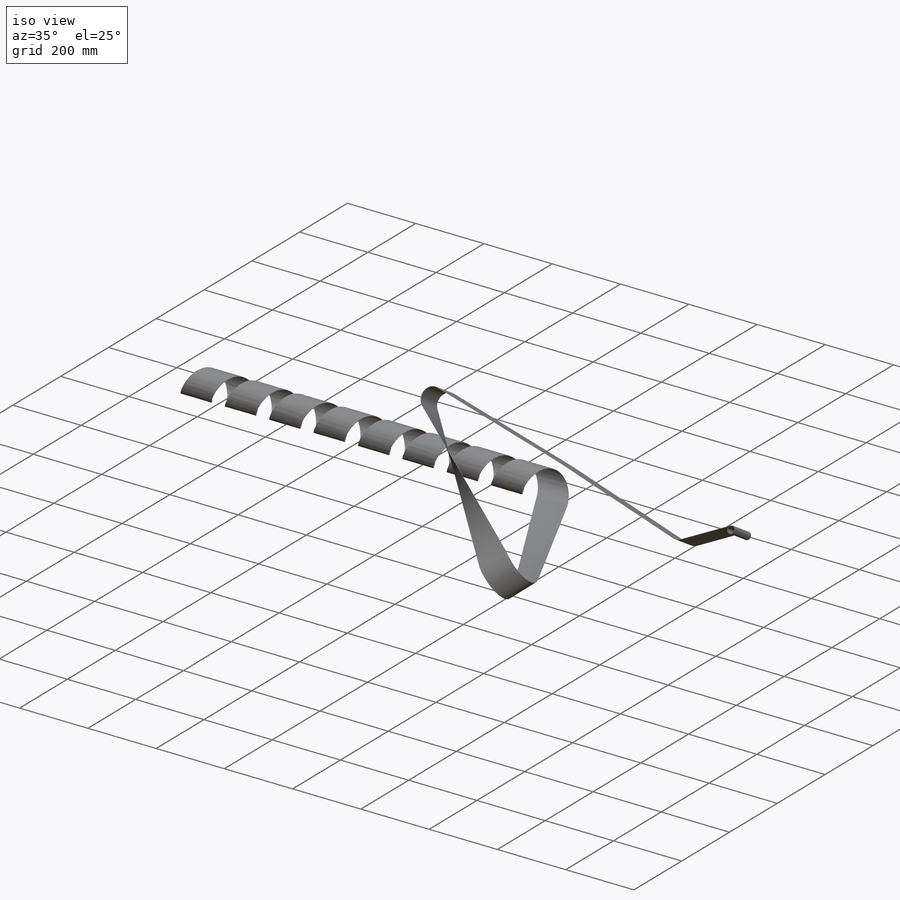
[diagram: iso view]
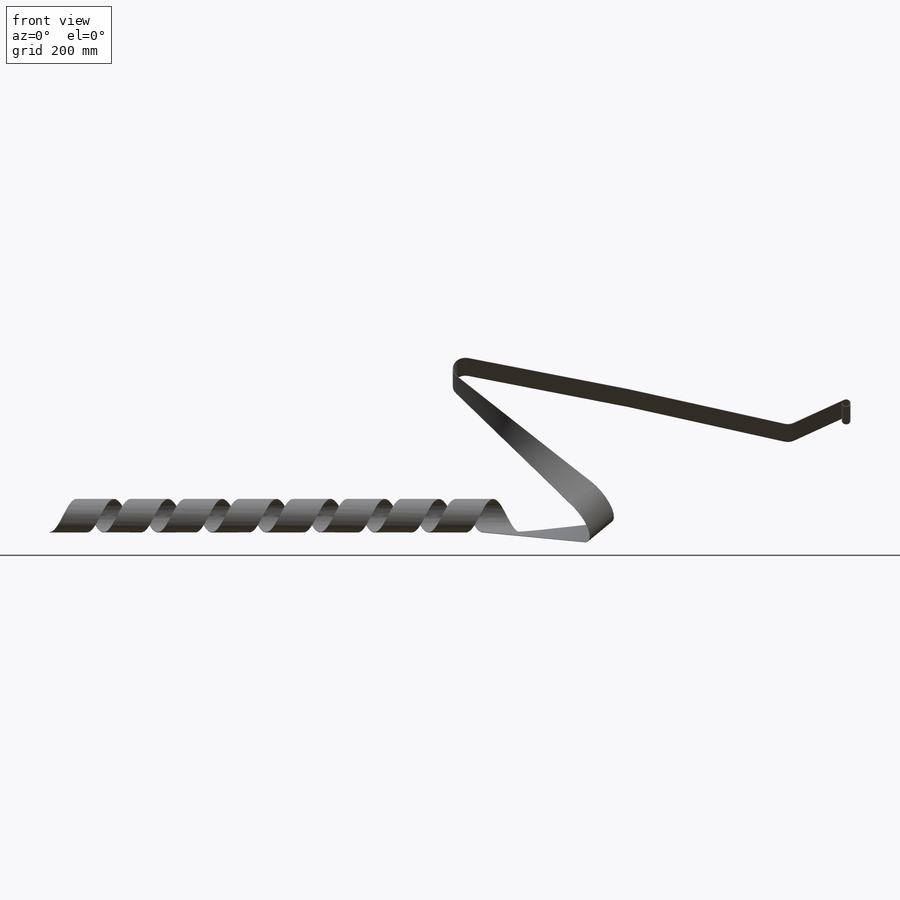
[diagram: front view]
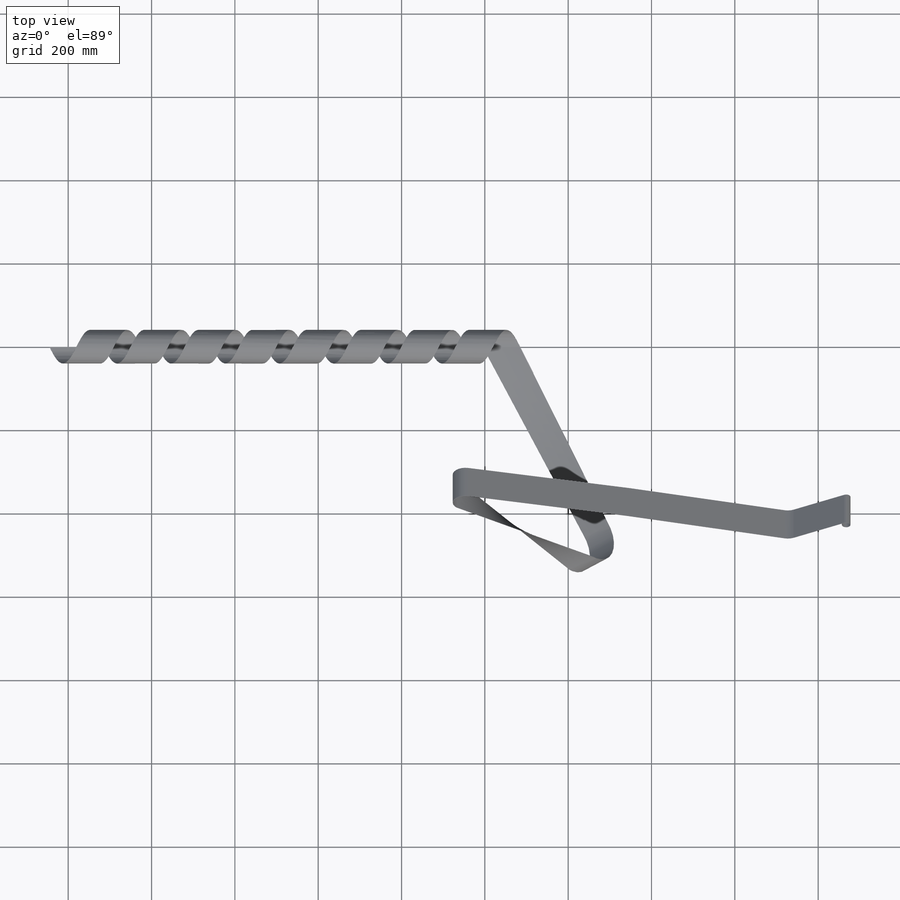
[diagram: top view]
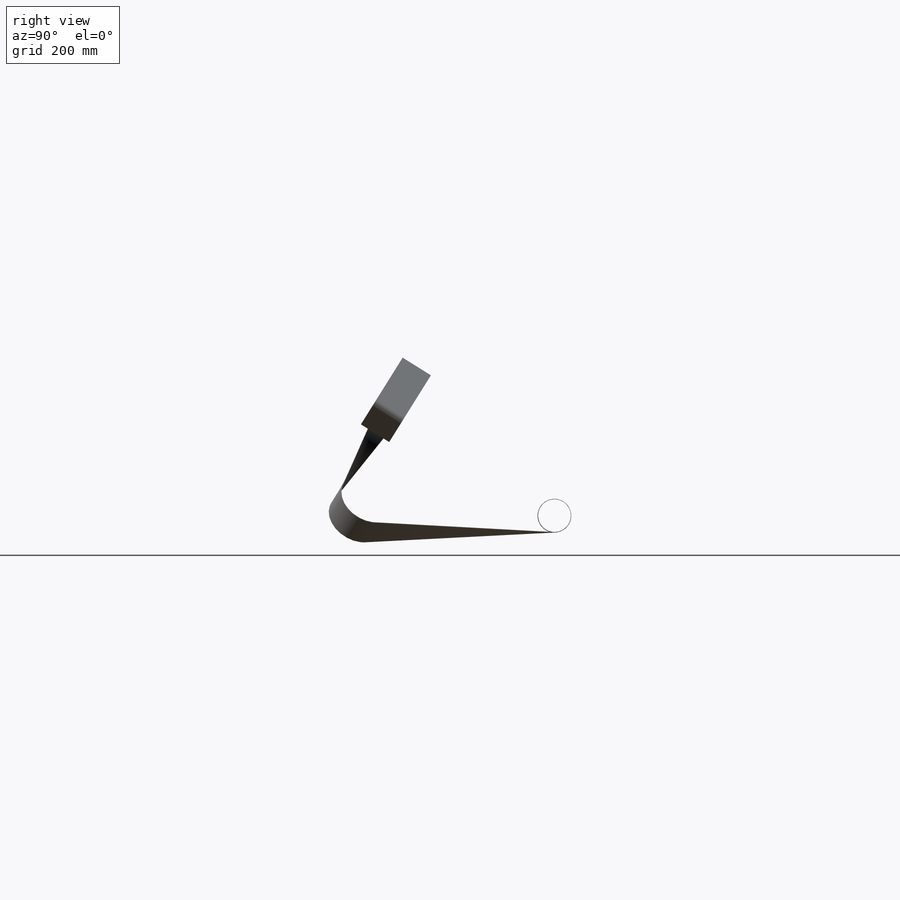
[diagram: right view]
SOLIDWORKS PART (.sldprt)
format: sldprt  version: not decoded by parser v0  size: 1,612,800 bytes
history: native  units: mm
features: sketch x15, plane x14, sweep x2, material x1, helix x1 (+9 scaffold rows collapsed)
feature tree (42):
  scaffold x9  (default folders/planes/origin — collapsed)
  material  "Thornel VCB-20 Kohlenstofftuch"
  plane  "Vorne"
  plane  "Oben"
  plane  "Rechts"
  sketch  "Skizze12"
  sketch  "Skizze1"  dims[D1=80.0mm]
  helix  "Spirale/Helix1"  Pitch=1040mm
  sketch  "3D-Skizze1"  dims[D1=200.0mm D2=200.0mm D3=100.0mm]
  plane  "Ebene2"
  sketch  "Skizze17"  dims[D1=450.0mm]
  plane  "Ebene5"
  sketch  "Skizze4"  dims[D1=1.0mm D2=80.0mm]
  plane  "Ebene1"
  plane  "Ebene4"
  sketch  "Skizze6"
  sketch  "Skizze2"  dims[D1=100.0mm D2=10.0mm]
  sweep  "Austragung4"
  plane  "Ebene11"
  sketch  "Skizze18"  dims[D1=450.0mm]
  plane  "Ebene6"  Offset=0mm
  plane  "Ebene7"  Offset=0 3D-Skizze5=0
  plane  "Ebene13"
  plane  "Ebene12"
  sketch  "Skizze24"  dims[D1=80.0mm D2=1.0mm Austragung10=0.0deg]
  plane  "Ebene9"
  sketch  "Skizze13"  dims[c1.D1=100.0mm c1.D4=120.0mm c1.D11=400.0mm c1.D5=400.0mm c1.D7=60.0mm c1.D10=60.0mm c2.D11=400.0mm c2.D4=60.0mm c2.D8=10.0mm c2.D9=400.0mm c2.D1=400.0mm c2.D3=60.0mm c2.D2=70.0mm c3.D3=360.0mm c3.D5=50.0mm c3.D6=300.0mm c3.D7=200.0mm c3.D8=140.0mm c3.D9=500.0mm c3.D10=800.0mm c4.D6=10.0mm c4.D7=540.0mm c4.D9=2340.0mm c4.D10=540.0mm c4.D11=2230.0mm c4.D2=10.0mm c4.D1=300.0mm c4.D3=300.0mm c5.D6=30.0mm c5.D7=10.0mm c5.D8=700.0mm c5.D5=10.0mm c5.D9=1000.0mm c5.D1=140.0mm c5.D3=530.0mm]
  plane  "Ebene10"
  sketch  "Skizze14"  dims[D1=1.0mm D2=80.0mm Austragung7=0.0deg]
  sketch  "Skizze15"  dims[D1=0.0mm]
  sketch  "Skizze16"  dims[D1=0.0mm]
  sketch  "Skizze25"  dims[D1=0.0mm]
  sketch  "Skizze26"  dims[D1=0.0mm]
  sweep  "Ausformung3"
decode coverage: 14 of 18 modeling features carry decoded parameters
note: suppression state not decoded; provenance and decode notes live in map.json
